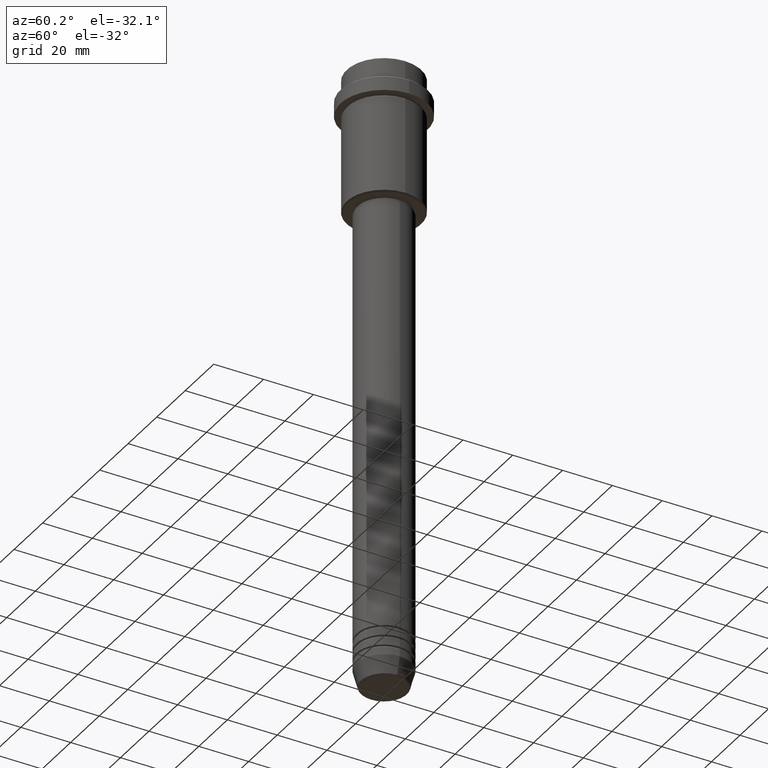
[diagram: clean part render]
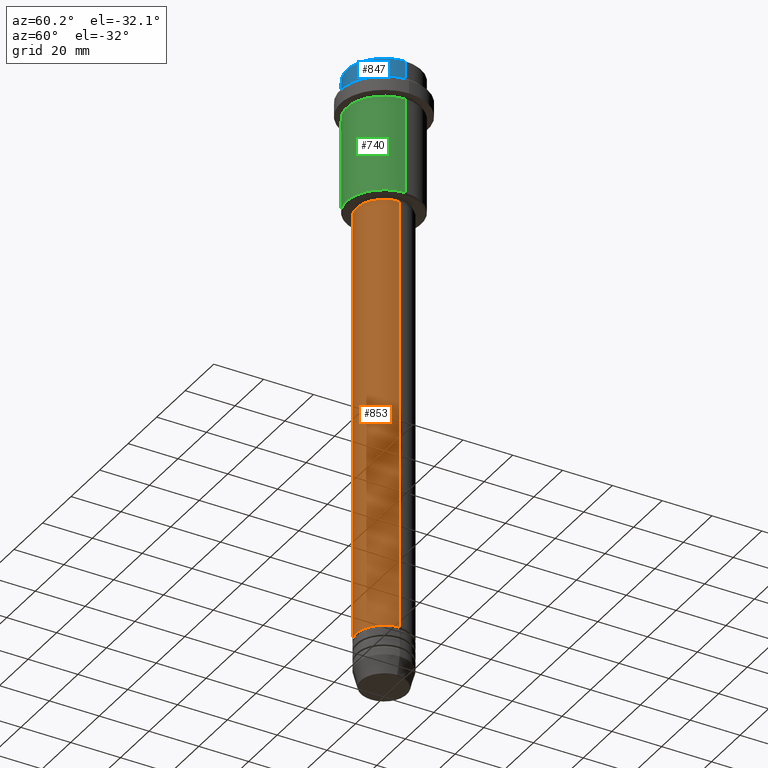
[diagram: same view with three faces highlighted in distinct colors, each labeled with its STEP entity id]
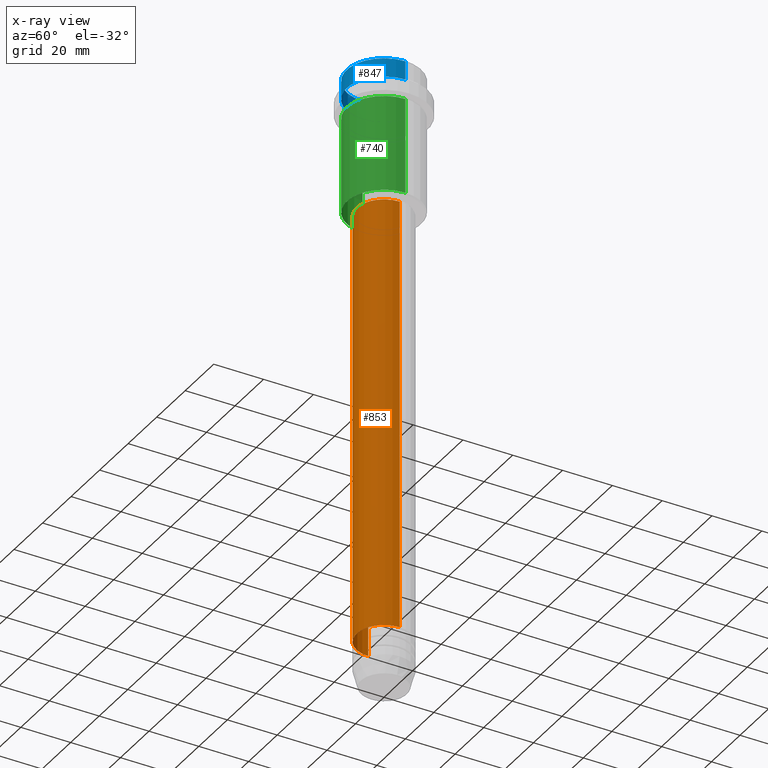
[diagram: x-ray of the same camera — body ghosted, the three highlighted faces saturated]
A machine part, auxiliary view with three faces highlighted in distinct colors.
The next image is the same camera in x-ray (body ghosted, the three faces saturated) — at least one of them is partly hidden behind the body in this view.
Their STEP definitions:

[orange] entity #853 — the highlighted cylindrical surface (edge-blend (fillet) strip) has radius 11 mm, axis along (-0, -0, 1).
#39 = CARTESIAN_POINT ( 'NONE',  ( 10.99999999999999822, 0.000000000000000000, -56.00000000000000000 ) ) ;
#58 = DIRECTION ( 'NONE',  ( 1.000000000000000000, 0.000000000000000000, 0.000000000000000000 ) ) ;
#67 = CYLINDRICAL_SURFACE ( 'NONE', #916, 11.00000000000000000 ) ;
#74 = LINE ( 'NONE', #840, #776 ) ;
#119 = CARTESIAN_POINT ( 'NONE',  ( 0.000000000000000000, 0.000000000000000000, -230.9999999999998863 ) ) ;
#149 = CARTESIAN_POINT ( 'NONE',  ( 0.000000000000000000, 0.000000000000000000, -56.00000000000000000 ) ) ;
#152 = EDGE_CURVE ( 'NONE', #1003, #1282, #456, .T. ) ;
#182 = CARTESIAN_POINT ( 'NONE',  ( 11.00000000000000000, 0.000000000000000000, -230.9999999999998863 ) ) ;
#209 = VERTEX_POINT ( 'NONE', #359 ) ;
#243 = DIRECTION ( 'NONE',  ( -0.000000000000000000, -0.000000000000000000, 1.000000000000000000 ) ) ;
#262 = EDGE_CURVE ( 'NONE', #209, #307, #319, .T. ) ;
#307 = VERTEX_POINT ( 'NONE', #39 ) ;
#319 = CIRCLE ( 'NONE', #646, 10.99999999999999822 ) ;
#359 = CARTESIAN_POINT ( 'NONE',  ( -10.99999999999999822, 1.347111479062088207E-15, -56.00000000000000000 ) ) ;
#444 = EDGE_CURVE ( 'NONE', #1282, #307, #74, .T. ) ;
#456 = CIRCLE ( 'NONE', #1066, 11.00000000000000000 ) ;
#511 = CARTESIAN_POINT ( 'NONE',  ( 0.000000000000000000, 0.000000000000000000, 0.000000000000000000 ) ) ;
#512 = EDGE_CURVE ( 'NONE', #1003, #209, #658, .T. ) ;
#539 = ORIENTED_EDGE ( 'NONE', *, *, #444, .T. ) ;
#568 = DIRECTION ( 'NONE',  ( 1.000000000000000000, 0.000000000000000000, 0.000000000000000000 ) ) ;
#603 = ORIENTED_EDGE ( 'NONE', *, *, #512, .F. ) ;
#624 = FACE_OUTER_BOUND ( 'NONE', #1058, .T. ) ;
#646 = AXIS2_PLACEMENT_3D ( 'NONE', #149, #710, #58 ) ;
#658 = LINE ( 'NONE', #1316, #1165 ) ;
#663 = DIRECTION ( 'NONE',  ( -0.000000000000000000, -0.000000000000000000, 1.000000000000000000 ) ) ;
#710 = DIRECTION ( 'NONE',  ( -0.000000000000000000, -0.000000000000000000, 1.000000000000000000 ) ) ;
#776 = VECTOR ( 'NONE', #663, 1000.000000000000000 ) ;
#840 = CARTESIAN_POINT ( 'NONE',  ( 11.00000000000000000, 0.000000000000000000, 0.000000000000000000 ) ) ;
#853 = ADVANCED_FACE ( 'NONE', ( #624 ), #67, .T. ) ;
#916 = AXIS2_PLACEMENT_3D ( 'NONE', #511, #945, #1383 ) ;
#945 = DIRECTION ( 'NONE',  ( -0.000000000000000000, -0.000000000000000000, 1.000000000000000000 ) ) ;
#1003 = VERTEX_POINT ( 'NONE', #1046 ) ;
#1025 = ORIENTED_EDGE ( 'NONE', *, *, #152, .T. ) ;
#1046 = CARTESIAN_POINT ( 'NONE',  ( -11.00000000000000000, 1.347111479062088405E-15, -230.9999999999998863 ) ) ;
#1058 = EDGE_LOOP ( 'NONE', ( #603, #1025, #539, #1375 ) ) ;
#1066 = AXIS2_PLACEMENT_3D ( 'NONE', #119, #243, #568 ) ;
#1101 = DIRECTION ( 'NONE',  ( -0.000000000000000000, -0.000000000000000000, 1.000000000000000000 ) ) ;
#1165 = VECTOR ( 'NONE', #1101, 1000.000000000000000 ) ;
#1282 = VERTEX_POINT ( 'NONE', #182 ) ;
#1316 = CARTESIAN_POINT ( 'NONE',  ( -11.00000000000000000, 1.347111479062088405E-15, 0.000000000000000000 ) ) ;
#1375 = ORIENTED_EDGE ( 'NONE', *, *, #262, .F. ) ;
#1383 = DIRECTION ( 'NONE',  ( 1.000000000000000000, 0.000000000000000000, 0.000000000000000000 ) ) ;

[blue] entity #847 — the highlighted cylindrical surface (partial cylindrical patch) has radius 15 mm, axis along (-0, -0, 1).
#170 = DIRECTION ( 'NONE',  ( 1.000000000000000000, 0.000000000000000000, 0.000000000000000000 ) ) ;
#194 = FACE_OUTER_BOUND ( 'NONE', #551, .T. ) ;
#260 = VECTOR ( 'NONE', #1338, 1000.000000000000000 ) ;
#261 = DIRECTION ( 'NONE',  ( -0.000000000000000000, -0.000000000000000000, 1.000000000000000000 ) ) ;
#275 = VERTEX_POINT ( 'NONE', #1368 ) ;
#279 = ORIENTED_EDGE ( 'NONE', *, *, #296, .T. ) ;
#287 = CARTESIAN_POINT ( 'NONE',  ( 15.00000000000000000, 0.000000000000000000, -0.5000000000000108802 ) ) ;
#296 = EDGE_CURVE ( 'NONE', #545, #275, #1141, .T. ) ;
#305 = VERTEX_POINT ( 'NONE', #287 ) ;
#349 = ORIENTED_EDGE ( 'NONE', *, *, #1296, .T. ) ;
#396 = AXIS2_PLACEMENT_3D ( 'NONE', #1400, #501, #170 ) ;
#469 = DIRECTION ( 'NONE',  ( -0.000000000000000000, -0.000000000000000000, 1.000000000000000000 ) ) ;
#487 = ORIENTED_EDGE ( 'NONE', *, *, #961, .F. ) ;
#501 = DIRECTION ( 'NONE',  ( -0.000000000000000000, -0.000000000000000000, 1.000000000000000000 ) ) ;
#525 = DIRECTION ( 'NONE',  ( 0.000000000000000000, 0.000000000000000000, -1.000000000000000000 ) ) ;
#542 = CARTESIAN_POINT ( 'NONE',  ( -15.00000000000000000, 1.836970198721029589E-15, -7.999999999999998224 ) ) ;
#545 = VERTEX_POINT ( 'NONE', #542 ) ;
#551 = EDGE_LOOP ( 'NONE', ( #487, #279, #1151, #349 ) ) ;
#717 = AXIS2_PLACEMENT_3D ( 'NONE', #723, #469, #804 ) ;
#723 = CARTESIAN_POINT ( 'NONE',  ( 0.000000000000000000, 0.000000000000000000, -7.999999999999998224 ) ) ;
#766 = LINE ( 'NONE', #1312, #1298 ) ;
#774 = CIRCLE ( 'NONE', #1371, 15.00000000000000000 ) ;
#804 = DIRECTION ( 'NONE',  ( 1.000000000000000000, 0.000000000000000000, 0.000000000000000000 ) ) ;
#847 = ADVANCED_FACE ( 'NONE', ( #194 ), #1157, .T. ) ;
#901 = LINE ( 'NONE', #1228, #260 ) ;
#939 = EDGE_CURVE ( 'NONE', #275, #305, #766, .T. ) ;
#961 = EDGE_CURVE ( 'NONE', #545, #1279, #901, .T. ) ;
#1141 = CIRCLE ( 'NONE', #717, 15.00000000000000000 ) ;
#1151 = ORIENTED_EDGE ( 'NONE', *, *, #939, .T. ) ;
#1157 = CYLINDRICAL_SURFACE ( 'NONE', #396, 15.00000000000000000 ) ;
#1228 = CARTESIAN_POINT ( 'NONE',  ( -15.00000000000000000, 1.836970198721029589E-15, 0.000000000000000000 ) ) ;
#1278 = DIRECTION ( 'NONE',  ( 1.000000000000000000, 0.000000000000000000, 0.000000000000000000 ) ) ;
#1279 = VERTEX_POINT ( 'NONE', #1399 ) ;
#1296 = EDGE_CURVE ( 'NONE', #305, #1279, #774, .T. ) ;
#1297 = CARTESIAN_POINT ( 'NONE',  ( 0.000000000000000000, 0.000000000000000000, -0.5000000000000108802 ) ) ;
#1298 = VECTOR ( 'NONE', #261, 1000.000000000000000 ) ;
#1312 = CARTESIAN_POINT ( 'NONE',  ( 15.00000000000000000, 0.000000000000000000, 0.000000000000000000 ) ) ;
#1338 = DIRECTION ( 'NONE',  ( -0.000000000000000000, -0.000000000000000000, 1.000000000000000000 ) ) ;
#1368 = CARTESIAN_POINT ( 'NONE',  ( 15.00000000000000000, 0.000000000000000000, -7.999999999999998224 ) ) ;
#1371 = AXIS2_PLACEMENT_3D ( 'NONE', #1297, #525, #1278 ) ;
#1399 = CARTESIAN_POINT ( 'NONE',  ( -15.00000000000000000, 1.836970198721029589E-15, -0.5000000000000108802 ) ) ;
#1400 = CARTESIAN_POINT ( 'NONE',  ( 0.000000000000000000, 0.000000000000000000, 0.000000000000000000 ) ) ;

[green] entity #740 — the highlighted cylindrical surface (partial cylindrical patch) has radius 15 mm, axis along (-0, -0, 1).
#36 = DIRECTION ( 'NONE',  ( -0.000000000000000000, -0.000000000000000000, 1.000000000000000000 ) ) ;
#91 = CARTESIAN_POINT ( 'NONE',  ( -15.00000000000000000, 1.836970198721029589E-15, 0.000000000000000000 ) ) ;
#142 = LINE ( 'NONE', #250, #983 ) ;
#161 = VERTEX_POINT ( 'NONE', #1404 ) ;
#250 = CARTESIAN_POINT ( 'NONE',  ( 15.00000000000000000, 0.000000000000000000, 0.000000000000000000 ) ) ;
#312 = CARTESIAN_POINT ( 'NONE',  ( 0.000000000000000000, 0.000000000000000000, -16.00000000000000000 ) ) ;
#340 = ORIENTED_EDGE ( 'NONE', *, *, #1137, .T. ) ;
#422 = CARTESIAN_POINT ( 'NONE',  ( 15.00000000000000000, 0.000000000000000000, -54.49999999999998579 ) ) ;
#424 = EDGE_LOOP ( 'NONE', ( #1104, #340, #817, #1001 ) ) ;
#474 = AXIS2_PLACEMENT_3D ( 'NONE', #869, #722, #1070 ) ;
#505 = CIRCLE ( 'NONE', #715, 15.00000000000000000 ) ;
#521 = VERTEX_POINT ( 'NONE', #999 ) ;
#573 = EDGE_CURVE ( 'NONE', #1097, #521, #1093, .T. ) ;
#689 = EDGE_CURVE ( 'NONE', #1269, #161, #142, .T. ) ;
#715 = AXIS2_PLACEMENT_3D ( 'NONE', #1020, #36, #1370 ) ;
#722 = DIRECTION ( 'NONE',  ( -0.000000000000000000, -0.000000000000000000, 1.000000000000000000 ) ) ;
#740 = ADVANCED_FACE ( 'NONE', ( #1299 ), #970, .T. ) ;
#745 = EDGE_CURVE ( 'NONE', #521, #161, #1343, .T. ) ;
#817 = ORIENTED_EDGE ( 'NONE', *, *, #689, .T. ) ;
#869 = CARTESIAN_POINT ( 'NONE',  ( 0.000000000000000000, 0.000000000000000000, 0.000000000000000000 ) ) ;
#966 = DIRECTION ( 'NONE',  ( -0.000000000000000000, -0.000000000000000000, 1.000000000000000000 ) ) ;
#970 = CYLINDRICAL_SURFACE ( 'NONE', #474, 15.00000000000000000 ) ;
#981 = DIRECTION ( 'NONE',  ( 1.000000000000000000, 0.000000000000000000, 0.000000000000000000 ) ) ;
#983 = VECTOR ( 'NONE', #1130, 1000.000000000000000 ) ;
#999 = CARTESIAN_POINT ( 'NONE',  ( -15.00000000000000355, 1.836970198721029983E-15, -16.00000000000000000 ) ) ;
#1001 = ORIENTED_EDGE ( 'NONE', *, *, #745, .F. ) ;
#1020 = CARTESIAN_POINT ( 'NONE',  ( 0.000000000000000000, 0.000000000000000000, -54.49999999999998579 ) ) ;
#1048 = DIRECTION ( 'NONE',  ( -0.000000000000000000, -0.000000000000000000, 1.000000000000000000 ) ) ;
#1070 = DIRECTION ( 'NONE',  ( 1.000000000000000000, 0.000000000000000000, 0.000000000000000000 ) ) ;
#1093 = LINE ( 'NONE', #91, #1374 ) ;
#1097 = VERTEX_POINT ( 'NONE', #1265 ) ;
#1104 = ORIENTED_EDGE ( 'NONE', *, *, #573, .F. ) ;
#1130 = DIRECTION ( 'NONE',  ( -0.000000000000000000, -0.000000000000000000, 1.000000000000000000 ) ) ;
#1137 = EDGE_CURVE ( 'NONE', #1097, #1269, #505, .T. ) ;
#1265 = CARTESIAN_POINT ( 'NONE',  ( -15.00000000000000000, 1.836970198721029589E-15, -54.49999999999998579 ) ) ;
#1269 = VERTEX_POINT ( 'NONE', #422 ) ;
#1270 = AXIS2_PLACEMENT_3D ( 'NONE', #312, #1048, #981 ) ;
#1299 = FACE_OUTER_BOUND ( 'NONE', #424, .T. ) ;
#1343 = CIRCLE ( 'NONE', #1270, 15.00000000000000178 ) ;
#1370 = DIRECTION ( 'NONE',  ( -1.000000000000000000, 0.000000000000000000, 0.000000000000000000 ) ) ;
#1374 = VECTOR ( 'NONE', #966, 1000.000000000000000 ) ;
#1404 = CARTESIAN_POINT ( 'NONE',  ( 15.00000000000000178, 0.000000000000000000, -16.00000000000000000 ) ) ;